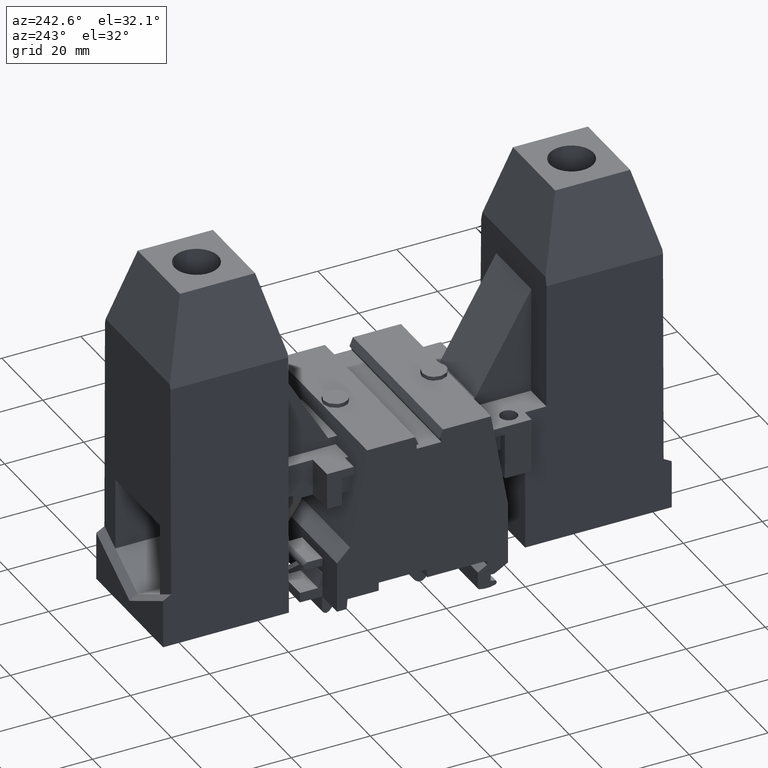
[diagram: clean part render]
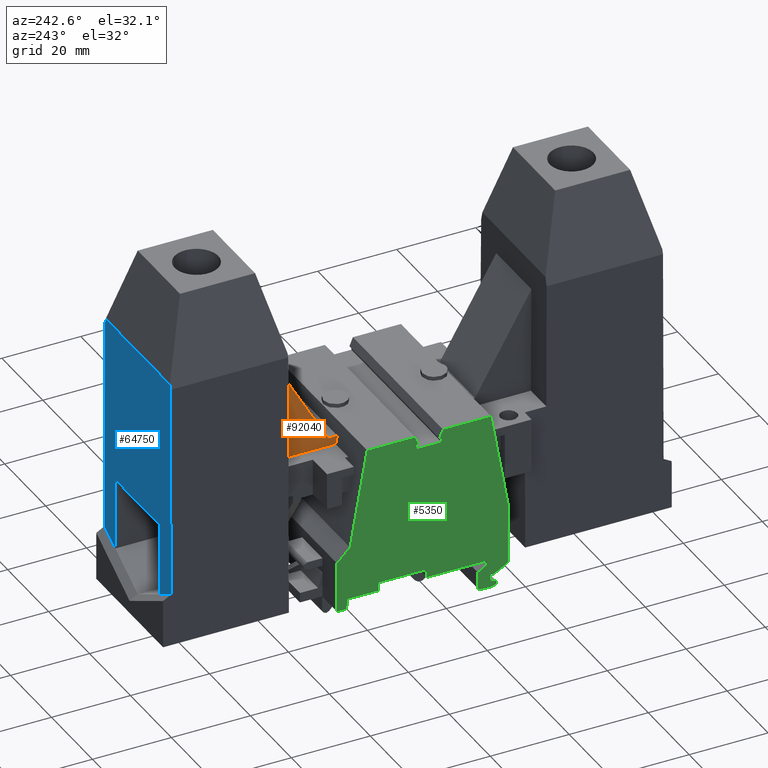
[diagram: same view with three faces highlighted in distinct colors, each labeled with its STEP entity id]
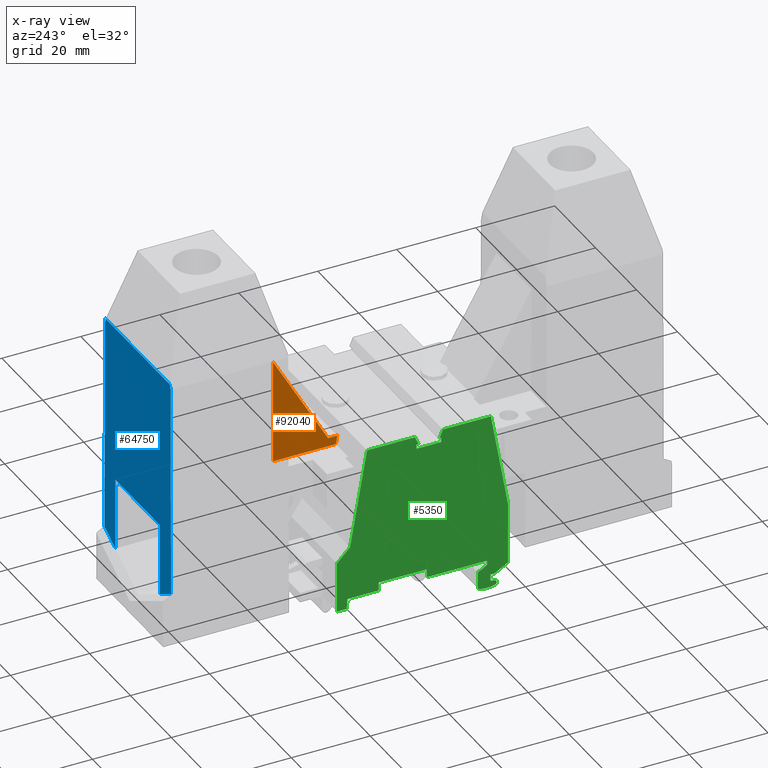
[diagram: x-ray of the same camera — body ghosted, the three highlighted faces saturated]
A machine part, auxiliary view with three faces highlighted in distinct colors.
The next image is the same camera in x-ray (body ghosted, the three faces saturated) — at least one of them is partly hidden behind the body in this view.
Their STEP definitions:

[orange] entity #92040 — the highlighted planar face has unit normal (1, 0, -0).
#59740=CARTESIAN_POINT('',(-164.631142385362,435.076897401777,
10.5689464237104));
#59750=VERTEX_POINT('',#59740);
#59780=CARTESIAN_POINT('',(-241.340247910468,0.0379418381061214,
10.5689464237104));
#59790=DIRECTION('',(0.173648177666931,0.984807753012208,0.));
#59800=VECTOR('',#59790,1.);
#59810=LINE('',#59780,#59800);
#59820=CARTESIAN_POINT('',(-164.252039376839,437.226897401777,
10.5689464237104));
#59830=VERTEX_POINT('',#59820);
#59840=EDGE_CURVE('',#59750,#59830,#59810,.T.);
#61220=CARTESIAN_POINT('',(-180.534946952833,435.076897401777,
10.5689464237104));
#61230=VERTEX_POINT('',#61220);
#61260=CARTESIAN_POINT('',(0.0066901697557995,435.076897401777,
10.5689464237104));
#61270=DIRECTION('',(-1.,-1.16578705234462E-17,0.));
#61280=VECTOR('',#61270,1.);
#61290=LINE('',#61260,#61280);
#61300=EDGE_CURVE('',#59750,#61230,#61290,.T.);
#62150=CARTESIAN_POINT('',(-180.534946952833,461.426724358369,
10.5689464237104));
#62160=VERTEX_POINT('',#62150);
#62190=CARTESIAN_POINT('',(-180.534946952833,0.0379418381061214,
10.5689464237104));
#62200=DIRECTION('',(1.16578705234462E-17,-1.,0.));
#62210=VECTOR('',#62200,1.);
#62220=LINE('',#62190,#62210);
#62230=EDGE_CURVE('',#62160,#61230,#62220,.T.);
#71510=CARTESIAN_POINT('',(-166.563170345102,437.226897401777,
10.5689464237104));
#71520=VERTEX_POINT('',#71510);
#71550=CARTESIAN_POINT('',(85.8479908363155,0.0379418381061214,
10.5689464237104));
#71560=DIRECTION('',(0.500000000000001,-0.866025403784438,0.));
#71570=VECTOR('',#71560,1.);
#71580=LINE('',#71550,#71570);
#71590=EDGE_CURVE('',#62160,#71520,#71580,.T.);
#71770=CARTESIAN_POINT('',(0.0066901697557995,437.226897401777,
10.5689464237104));
#71780=DIRECTION('',(1.,1.16578705234462E-17,0.));
#71790=VECTOR('',#71780,1.);
#71800=LINE('',#71770,#71790);
#71810=EDGE_CURVE('',#71520,#59830,#71800,.T.);
#91920=CARTESIAN_POINT('',(-177.310925602987,450.004499974122,
10.5689464237104));
#91930=DIRECTION('',(-8.251437388566E-40,-1.20370621524202E-35,-1.));
#91940=DIRECTION('',(-1.,-1.16578705234462E-17,8.25143738856741E-40));
#91950=AXIS2_PLACEMENT_3D('',#91920,#91930,#91940);
#91960=PLANE('',#91950);
#91970=ORIENTED_EDGE('',*,*,#61300,.F.);
#91980=ORIENTED_EDGE('',*,*,#62230,.T.);
#91990=ORIENTED_EDGE('',*,*,#71590,.F.);
#92000=ORIENTED_EDGE('',*,*,#71810,.F.);
#92010=ORIENTED_EDGE('',*,*,#59840,.T.);
#92020=EDGE_LOOP('',(#92010,#92000,#91990,#91980,#91970));
#92030=FACE_OUTER_BOUND('',#92020,.T.);
#92040=ADVANCED_FACE('',(#92030),#91960,.F.);

[blue] entity #64750 — the highlighted planar face has unit normal (-0, 1, -0).
#63230=CARTESIAN_POINT('',(-210.334904458857,468.017892973807,
-13.6638637771688));
#63240=VERTEX_POINT('',#63230);
#63270=CARTESIAN_POINT('',(-210.334904458857,0.,-141.699070903378));
#63280=DIRECTION('',(1.11022302462516E-16,-0.964557418457798,
-0.263873049965373));
#63290=VECTOR('',#63280,1.);
#63300=LINE('',#63270,#63290);
#63310=CARTESIAN_POINT('',(-210.334904458857,466.801669349769,
-13.9965849101709));
#63320=VERTEX_POINT('',#63310);
#63330=EDGE_CURVE('',#63240,#63320,#63300,.T.);
#63610=CARTESIAN_POINT('',(-210.334904458857,466.799715768666,
17.9951193494836));
#63620=VERTEX_POINT('',#63610);
#63650=CARTESIAN_POINT('',(-210.334904458857,0.,145.697070903378));
#63660=DIRECTION('',(-1.11022302462516E-16,0.964557418457798,
-0.263873049965373));
#63670=VECTOR('',#63660,1.);
#63680=LINE('',#63650,#63670);
#63690=CARTESIAN_POINT('',(-210.334904458857,468.017892973807,
17.6618637771685));
#63700=VERTEX_POINT('',#63690);
#63710=EDGE_CURVE('',#63620,#63700,#63680,.T.);
#64060=CARTESIAN_POINT('',(-210.334904458857,417.410289625451,
16.1237427038505));
#64070=DIRECTION('',(-1.,-9.04847628015964E-17,1.20370621524202E-35));
#64080=DIRECTION('',(-9.04847628015964E-17,1.,6.7169021754704E-17));
#64090=AXIS2_PLACEMENT_3D('',#64060,#64070,#64080);
#64100=PLANE('',#64090);
#64110=CARTESIAN_POINT('',(-210.334904458857,0.,20.439299281979));
#64120=DIRECTION('',(9.0205620750794E-17,-0.999986292247427,
0.00523596383141961));
#64130=VECTOR('',#64120,1.);
#64140=LINE('',#64110,#64130);
#64150=CARTESIAN_POINT('',(-210.334904458857,412.675057511721,
18.2785179872633));
#64160=VERTEX_POINT('',#64150);
#64170=EDGE_CURVE('',#63620,#64160,#64140,.T.);
#64180=ORIENTED_EDGE('',*,*,#64170,.F.);
#64190=CARTESIAN_POINT('',(-210.334904458857,402.545611919306,0.));
#64200=DIRECTION('',(-6.2090019490887E-17,0.484718017812019,
0.87467047692739));
#64210=VECTOR('',#64200,1.);
#64220=LINE('',#64190,#64210);
#64230=CARTESIAN_POINT('',(-210.334904458857,409.691077671111,
12.8939459795864));
#64240=VERTEX_POINT('',#64230);
#64250=EDGE_CURVE('',#64240,#64160,#64220,.T.);
#64260=ORIENTED_EDGE('',*,*,#64250,.T.);
#64270=CARTESIAN_POINT('',(-210.334904458857,0.,12.8939459795864));
#64280=DIRECTION('',(-9.04847628015964E-17,1.,1.29422492262822E-31));
#64290=VECTOR('',#64280,1.);
#64300=LINE('',#64270,#64290);
#64310=CARTESIAN_POINT('',(-210.334904458857,427.976897401777,
12.8939459795864));
#64320=VERTEX_POINT('',#64310);
#64330=EDGE_CURVE('',#64240,#64320,#64300,.T.);
#64340=ORIENTED_EDGE('',*,*,#64330,.F.);
#64350=CARTESIAN_POINT('',(-210.334904458857,427.976897401777,0.));
#64360=DIRECTION('',(-9.62964972193618E-35,1.73472347597681E-18,-1.));
#64370=VECTOR('',#64360,1.);
#64380=LINE('',#64350,#64370);
#64390=CARTESIAN_POINT('',(-210.334904458857,427.976897401777,
-8.95605402041363));
#64400=VERTEX_POINT('',#64390);
#64410=EDGE_CURVE('',#64320,#64400,#64380,.T.);
#64420=ORIENTED_EDGE('',*,*,#64410,.F.);
#64430=CARTESIAN_POINT('',(-210.334904458857,0.,-8.95605402041363));
#64440=DIRECTION('',(9.04847628015964E-17,-1.,-1.29422492262822E-31));
#64450=VECTOR('',#64440,1.);
#64460=LINE('',#64430,#64450);
#64470=CARTESIAN_POINT('',(-210.334904458857,409.71666927696,
-8.95605402041363));
#64480=VERTEX_POINT('',#64470);
#64490=EDGE_CURVE('',#64400,#64480,#64460,.T.);
#64500=ORIENTED_EDGE('',*,*,#64490,.F.);
#64510=CARTESIAN_POINT('',(-210.334904458857,404.754724441531,0.));
#64520=DIRECTION('',(6.20906612528251E-17,-0.484624549062215,
0.874722268177874));
#64530=VECTOR('',#64520,1.);
#64540=LINE('',#64510,#64530);
#64550=CARTESIAN_POINT('',(-210.334904458857,412.666330150359,
-14.2800394737457));
#64560=VERTEX_POINT('',#64550);
#64570=EDGE_CURVE('',#64560,#64480,#64540,.T.);
#64580=ORIENTED_EDGE('',*,*,#64570,.T.);
#64590=CARTESIAN_POINT('',(-210.334904458857,0.,-16.4407750716866));
#64600=DIRECTION('',(-9.0205620750794E-17,0.999986292247427,
0.00523596383141959));
#64610=VECTOR('',#64600,1.);
#64620=LINE('',#64590,#64610);
#64630=EDGE_CURVE('',#64560,#63320,#64620,.T.);
#64640=ORIENTED_EDGE('',*,*,#64630,.F.);
#64650=ORIENTED_EDGE('',*,*,#63330,.T.);
#64660=CARTESIAN_POINT('',(-210.334904458857,468.017892973807,0.));
#64670=DIRECTION('',(7.29869891843812E-33,-6.7169021754704E-17,1.));
#64680=VECTOR('',#64670,1.);
#64690=LINE('',#64660,#64680);
#64700=EDGE_CURVE('',#63240,#63700,#64690,.T.);
#64710=ORIENTED_EDGE('',*,*,#64700,.F.);
#64720=ORIENTED_EDGE('',*,*,#63710,.T.);
#64730=EDGE_LOOP('',(#64720,#64710,#64650,#64640,#64580,#64500,#64420,
#64340,#64260,#64180));
#64740=FACE_OUTER_BOUND('',#64730,.T.);
#64750=ADVANCED_FACE('',(#64740),#64100,.T.);

[green] entity #5350 — the highlighted planar face has unit normal (-1, 0, 0).
#2810=CARTESIAN_POINT('',(0.,0.,24.));
#2820=DIRECTION('',(0.,0.,1.));
#2830=DIRECTION('',(1.,0.,0.));
#2840=AXIS2_PLACEMENT_3D('',#2810,#2820,#2830);
#2850=PLANE('',#2840);
#2860=CARTESIAN_POINT('',(-203.857690950045,-0.137058161893833,24.));
#2870=DIRECTION('',(0.0871557427476593,0.996194698091746,0.));
#2880=VECTOR('',#2870,1.);
#2890=LINE('',#2860,#2880);
#2900=CARTESIAN_POINT('',(-168.85006850312,400.001897401778,24.));
#2910=VERTEX_POINT('',#2900);
#2920=CARTESIAN_POINT('',(-168.626972411129,402.551897401777,24.));
#2930=VERTEX_POINT('',#2920);
#2940=EDGE_CURVE('',#2910,#2930,#2890,.T.);
#2950=ORIENTED_EDGE('',*,*,#2940,.T.);
#2960=CARTESIAN_POINT('',(-133.376946844305,400.001897401777,24.));
#2970=DIRECTION('',(-1.,0.,0.));
#2980=VECTOR('',#2970,1.);
#2990=LINE('',#2960,#2980);
#3000=CARTESIAN_POINT('',(-171.276946844305,400.001897401777,24.));
#3010=VERTEX_POINT('',#3000);
#3020=EDGE_CURVE('',#2910,#3010,#2990,.T.);
#3030=ORIENTED_EDGE('',*,*,#3020,.F.);
#3040=CARTESIAN_POINT('',(-171.276946844305,402.501897401777,24.));
#3050=DIRECTION('',(0.,1.,0.));
#3060=VECTOR('',#3050,1.);
#3070=LINE('',#3040,#3060);
#3080=CARTESIAN_POINT('',(-171.276946844305,412.801897401777,24.));
#3090=VERTEX_POINT('',#3080);
#3100=EDGE_CURVE('',#3010,#3090,#3070,.T.);
#3110=ORIENTED_EDGE('',*,*,#3100,.F.);
#3120=CARTESIAN_POINT('',(-133.376946844305,450.701897401776,24.));
#3130=DIRECTION('',(0.707106781186557,0.707106781186538,0.));
#3140=VECTOR('',#3130,1.);
#3150=LINE('',#3120,#3140);
#3160=CARTESIAN_POINT('',(-167.976946844305,416.101897401776,24.));
#3170=VERTEX_POINT('',#3160);
#3180=EDGE_CURVE('',#3090,#3170,#3150,.T.);
#3190=ORIENTED_EDGE('',*,*,#3180,.F.);
#3200=CARTESIAN_POINT('',(-241.371105132092,-0.137058161893833,24.));
#3210=DIRECTION('',(-0.173648177666931,-0.984807753012208,0.));
#3220=VECTOR('',#3210,1.);
#3230=LINE('',#3200,#3220);
#3240=CARTESIAN_POINT('',(-163.656935816948,440.601897401776,24.));
#3250=VERTEX_POINT('',#3240);
#3260=EDGE_CURVE('',#3250,#3170,#3230,.T.);
#3270=ORIENTED_EDGE('',*,*,#3260,.T.);
#3280=CARTESIAN_POINT('',(0.0567081987647811,440.601897401777,24.));
#3290=DIRECTION('',(-1.,0.,0.));
#3300=VECTOR('',#3290,1.);
#3310=LINE('',#3280,#3300);
#3320=CARTESIAN_POINT('',(-151.515153164963,440.601897401777,24.));
#3330=VERTEX_POINT('',#3320);
#3340=EDGE_CURVE('',#3330,#3250,#3310,.T.);
#3350=ORIENTED_EDGE('',*,*,#3340,.T.);
#3360=CARTESIAN_POINT('',(-151.256441990853,439.992628530266,24.));
#3370=DIRECTION('',(0.390848743748333,-0.920454919868621,0.));
#3380=VECTOR('',#3370,1.);
#3390=LINE('',#3360,#3380);
#3400=CARTESIAN_POINT('',(-150.614946844305,438.481897401777,24.));
#3410=VERTEX_POINT('',#3400);
#3420=EDGE_CURVE('',#3330,#3410,#3390,.T.);
#3430=ORIENTED_EDGE('',*,*,#3420,.F.);
#3440=CARTESIAN_POINT('',(-150.871824483105,438.481897401777,24.));
#3450=DIRECTION('',(-1.,0.,0.));
#3460=VECTOR('',#3450,1.);
#3470=LINE('',#3440,#3460);
#3480=CARTESIAN_POINT('',(-151.126946844305,438.481897401777,24.));
#3490=VERTEX_POINT('',#3480);
#3500=EDGE_CURVE('',#3410,#3490,#3470,.T.);
#3510=ORIENTED_EDGE('',*,*,#3500,.F.);
#3520=CARTESIAN_POINT('',(-151.126946844305,437.401897401777,24.));
#3530=DIRECTION('',(0.,1.,0.));
#3540=VECTOR('',#3530,1.);
#3550=LINE('',#3520,#3540);
#3560=CARTESIAN_POINT('',(-151.126946844305,437.401897401777,24.));
#3570=VERTEX_POINT('',#3560);
#3580=EDGE_CURVE('',#3570,#3490,#3550,.T.);
#3590=ORIENTED_EDGE('',*,*,#3580,.T.);
#3600=CARTESIAN_POINT('',(-133.376946844305,437.401897401777,24.));
#3610=DIRECTION('',(1.,0.,0.));
#3620=VECTOR('',#3610,1.);
#3630=LINE('',#3600,#3620);
#3640=CARTESIAN_POINT('',(-144.826946844305,437.401897401777,24.));
#3650=VERTEX_POINT('',#3640);
#3660=EDGE_CURVE('',#3570,#3650,#3630,.T.);
#3670=ORIENTED_EDGE('',*,*,#3660,.F.);
#3680=CARTESIAN_POINT('',(-144.826946844305,402.501897401777,24.));
#3690=DIRECTION('',(0.,1.,0.));
#3700=VECTOR('',#3690,1.);
#3710=LINE('',#3680,#3700);
#3720=CARTESIAN_POINT('',(-144.826946844305,438.481897401777,24.));
#3730=VERTEX_POINT('',#3720);
#3740=EDGE_CURVE('',#3650,#3730,#3710,.T.);
#3750=ORIENTED_EDGE('',*,*,#3740,.F.);
#3760=CARTESIAN_POINT('',(-145.082069205506,438.481897401777,24.));
#3770=DIRECTION('',(1.,0.,0.));
#3780=VECTOR('',#3770,1.);
#3790=LINE('',#3760,#3780);
#3800=CARTESIAN_POINT('',(-145.338946844305,438.481897401778,24.));
#3810=VERTEX_POINT('',#3800);
#3820=EDGE_CURVE('',#3810,#3730,#3790,.T.);
#3830=ORIENTED_EDGE('',*,*,#3820,.T.);
#3840=CARTESIAN_POINT('',(-145.238546541883,438.718341688214,24.));
#3850=DIRECTION('',(0.390848743748363,0.920454919868609,0.));
#3860=VECTOR('',#3850,1.);
#3870=LINE('',#3840,#3860);
#3880=CARTESIAN_POINT('',(-144.438740523647,440.601897401778,24.));
#3890=VERTEX_POINT('',#3880);
#3900=EDGE_CURVE('',#3810,#3890,#3870,.T.);
#3910=ORIENTED_EDGE('',*,*,#3900,.F.);
#3920=CARTESIAN_POINT('',(-132.296957871662,440.601897401777,24.));
#3930=VERTEX_POINT('',#3920);
#3940=EDGE_CURVE('',#3930,#3890,#3310,.T.);
#3950=ORIENTED_EDGE('',*,*,#3940,.T.);
#3960=CARTESIAN_POINT('',(-54.613645778142,0.0379418381061214,24.));
#3970=DIRECTION('',(-0.17364817766693,0.984807753012208,0.));
#3980=VECTOR('',#3970,1.);
#3990=LINE('',#3960,#3980);
#4000=CARTESIAN_POINT('',(-127.976946844305,416.101897401777,24.));
#4010=VERTEX_POINT('',#4000);
#4020=EDGE_CURVE('',#4010,#3930,#3990,.T.);
#4030=ORIENTED_EDGE('',*,*,#4020,.T.);
#4040=CARTESIAN_POINT('',(-127.976946844305,0.0379418381061214,24.));
#4050=DIRECTION('',(0.,1.,0.));
#4060=VECTOR('',#4050,1.);
#4070=LINE('',#4040,#4060);
#4080=CARTESIAN_POINT('',(-127.976946844305,400.593755830481,24.));
#4090=VERTEX_POINT('',#4080);
#4100=EDGE_CURVE('',#4090,#4010,#4070,.T.);
#4110=ORIENTED_EDGE('',*,*,#4100,.T.);
#4120=CARTESIAN_POINT('',(0.0567081987647811,474.514021034929,24.));
#4130=DIRECTION('',(-0.866025403784439,-0.5,0.));
#4140=VECTOR('',#4130,1.);
#4150=LINE('',#4120,#4140);
#4160=CARTESIAN_POINT('',(-131.426946844306,398.601897401776,24.));
#4170=VERTEX_POINT('',#4160);
#4180=EDGE_CURVE('',#4090,#4170,#4150,.T.);
#4190=ORIENTED_EDGE('',*,*,#4180,.F.);
#4200=CARTESIAN_POINT('',(-131.376946844305,398.601897401777,24.));
#4210=DIRECTION('',(-1.,0.,0.));
#4220=VECTOR('',#4210,1.);
#4230=LINE('',#4200,#4220);
#4240=CARTESIAN_POINT('',(-132.376946844305,398.601897401777,24.));
#4250=VERTEX_POINT('',#4240);
#4260=EDGE_CURVE('',#4170,#4250,#4230,.T.);
#4270=ORIENTED_EDGE('',*,*,#4260,.F.);
#4280=CARTESIAN_POINT('',(-132.376946844305,398.601897401777,24.));
#4290=DIRECTION('',(0.,-1.,0.));
#4300=VECTOR('',#4290,1.);
#4310=LINE('',#4280,#4300);
#4320=CARTESIAN_POINT('',(-132.376946844305,396.951897401777,24.));
#4330=VERTEX_POINT('',#4320);
#4340=EDGE_CURVE('',#4250,#4330,#4310,.T.);
#4350=ORIENTED_EDGE('',*,*,#4340,.F.);
#4360=CARTESIAN_POINT('',(-133.376946844305,397.128224382485,24.));
#4370=DIRECTION('',(0.984807753012207,-0.173648177666938,0.));
#4380=VECTOR('',#4370,1.);
#4390=LINE('',#4360,#4380);
#4400=CARTESIAN_POINT('',(-131.099761719623,396.726695204936,24.));
#4410=VERTEX_POINT('',#4400);
#4420=EDGE_CURVE('',#4330,#4410,#4390,.T.);
#4430=ORIENTED_EDGE('',*,*,#4420,.F.);
#4440=CARTESIAN_POINT('',(-131.460250547028,396.206002027336,24.));
#4450=DIRECTION('',(0.,0.,1.));
#4460=DIRECTION('',(1.,0.,0.));
#4470=AXIS2_PLACEMENT_3D('',#4440,#4450,#4460);
#4480=CIRCLE('',#4470,0.63330370272275);
#4490=CARTESIAN_POINT('',(-131.145653058753,395.656363964377,24.));
#4500=VERTEX_POINT('',#4490);
#4510=EDGE_CURVE('',#4500,#4410,#4480,.T.);
#4520=ORIENTED_EDGE('',*,*,#4510,.T.);
#4530=CARTESIAN_POINT('',(-133.376946844305,402.501897401777,24.));
#4540=DIRECTION('',(0.,0.,1.));
#4550=DIRECTION('',(1.,0.,0.));
#4560=AXIS2_PLACEMENT_3D('',#4530,#4540,#4550);
#4570=CIRCLE('',#4560,7.20000000000001);
#4580=CARTESIAN_POINT('',(-135.366346237574,395.582194369561,24.));
#4590=VERTEX_POINT('',#4580);
#4600=EDGE_CURVE('',#4590,#4500,#4570,.T.);
#4610=ORIENTED_EDGE('',*,*,#4600,.T.);
#4620=CARTESIAN_POINT('',(-135.126946844305,396.021156703369,24.));
#4630=DIRECTION('',(0.,0.,1.));
#4640=DIRECTION('',(1.,0.,0.));
#4650=AXIS2_PLACEMENT_3D('',#4620,#4630,#4640);
#4660=CIRCLE('',#4650,0.5);
#4670=CARTESIAN_POINT('',(-135.626946844305,396.021156703369,24.));
#4680=VERTEX_POINT('',#4670);
#4690=EDGE_CURVE('',#4680,#4590,#4660,.T.);
#4700=ORIENTED_EDGE('',*,*,#4690,.T.);
#4710=CARTESIAN_POINT('',(-135.626946844305,-0.137058161893833,24.));
#4720=DIRECTION('',(0.,-1.,0.));
#4730=VECTOR('',#4720,1.);
#4740=LINE('',#4710,#4730);
#4750=CARTESIAN_POINT('',(-135.626946844305,400.0951592961,24.));
#4760=VERTEX_POINT('',#4750);
#4770=EDGE_CURVE('',#4760,#4680,#4740,.T.);
#4780=ORIENTED_EDGE('',*,*,#4770,.T.);
#4790=CARTESIAN_POINT('',(0.0567081987647811,478.43215405985,24.));
#4800=DIRECTION('',(-0.866025403784436,-0.500000000000005,0.));
#4810=VECTOR('',#4800,1.);
#4820=LINE('',#4790,#4810);
#4830=CARTESIAN_POINT('',(-133.276946844305,401.451932428696,24.));
#4840=VERTEX_POINT('',#4830);
#4850=EDGE_CURVE('',#4840,#4760,#4820,.T.);
#4860=ORIENTED_EDGE('',*,*,#4850,.T.);
#4870=CARTESIAN_POINT('',(-133.276946844305,402.501897401777,24.));
#4880=DIRECTION('',(0.,-1.,0.));
#4890=VECTOR('',#4880,1.);
#4900=LINE('',#4870,#4890);
#4910=CARTESIAN_POINT('',(-133.276946844305,402.551897401777,24.));
#4920=VERTEX_POINT('',#4910);
#4930=EDGE_CURVE('',#4920,#4840,#4900,.T.);
#4940=ORIENTED_EDGE('',*,*,#4930,.T.);
#4950=CARTESIAN_POINT('',(-148.493220650901,402.551897401777,24.));
#4960=DIRECTION('',(1.,0.,0.));
#4970=VECTOR('',#4960,1.);
#4980=LINE('',#4950,#4970);
#4990=CARTESIAN_POINT('',(-148.443220650877,402.551897401777,24.));
#5000=VERTEX_POINT('',#4990);
#5010=EDGE_CURVE('',#5000,#4920,#4980,.T.);
#5020=ORIENTED_EDGE('',*,*,#5010,.T.);
#5030=CARTESIAN_POINT('',(-148.438846217701,402.501897401777,24.));
#5040=DIRECTION('',(0.0871557427476392,-0.996194698091747,0.));
#5050=VECTOR('',#5040,1.);
#5060=LINE('',#5030,#5050);
#5070=CARTESIAN_POINT('',(-148.626946844281,404.651897401777,24.));
#5080=VERTEX_POINT('',#5070);
#5090=EDGE_CURVE('',#5080,#5000,#5060,.T.);
#5100=ORIENTED_EDGE('',*,*,#5090,.T.);
#5110=CARTESIAN_POINT('',(-133.376946844305,404.651897401777,24.));
#5120=DIRECTION('',(1.,0.,0.));
#5130=VECTOR('',#5120,1.);
#5140=LINE('',#5110,#5130);
#5150=CARTESIAN_POINT('',(-160.726946844305,404.651897401777,24.));
#5160=VERTEX_POINT('',#5150);
#5170=EDGE_CURVE('',#5160,#5080,#5140,.T.);
#5180=ORIENTED_EDGE('',*,*,#5170,.T.);
#5190=CARTESIAN_POINT('',(-160.726946844305,402.501897401777,24.));
#5200=DIRECTION('',(0.,1.,0.));
#5210=VECTOR('',#5200,1.);
#5220=LINE('',#5190,#5210);
#5230=CARTESIAN_POINT('',(-160.726946844305,402.551897401777,24.));
#5240=VERTEX_POINT('',#5230);
#5250=EDGE_CURVE('',#5240,#5160,#5220,.T.);
#5260=ORIENTED_EDGE('',*,*,#5250,.T.);
#5270=CARTESIAN_POINT('',(0.0567081987647811,402.551897401777,24.));
#5280=DIRECTION('',(1.,0.,0.));
#5290=VECTOR('',#5280,1.);
#5300=LINE('',#5270,#5290);
#5310=EDGE_CURVE('',#2930,#5240,#5300,.T.);
#5320=ORIENTED_EDGE('',*,*,#5310,.T.);
#5330=EDGE_LOOP('',(#5320,#5260,#5180,#5100,#5020,#4940,#4860,#4780,
#4700,#4610,#4520,#4430,#4350,#4270,#4190,#4110,#4030,#3950,#3910,#3830,
#3750,#3670,#3590,#3510,#3430,#3350,#3270,#3190,#3110,#3030,#2950));
#5340=FACE_OUTER_BOUND('',#5330,.T.);
#5350=ADVANCED_FACE('',(#5340),#2850,.T.);